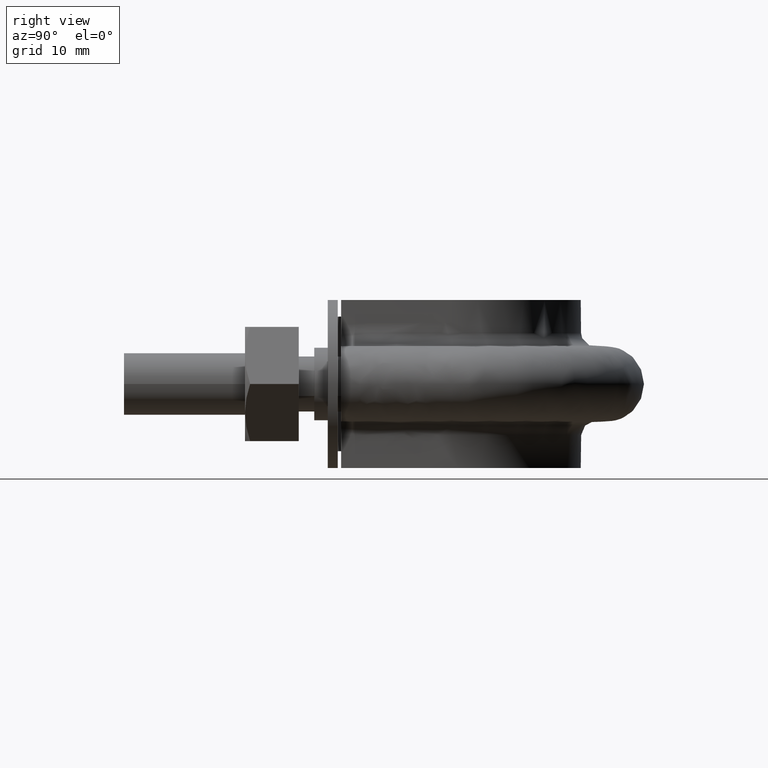
[diagram: clean part render]
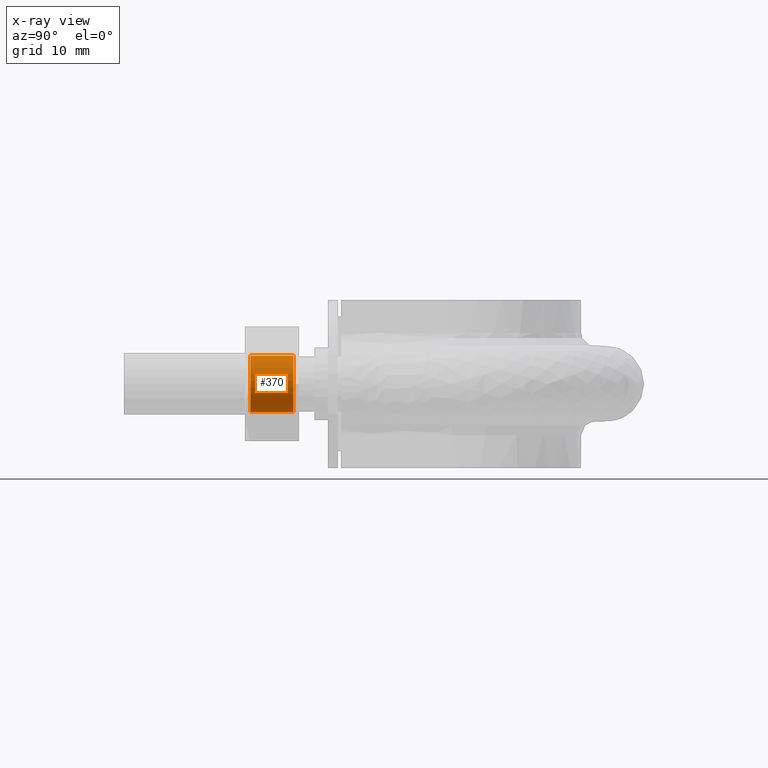
[diagram: x-ray — body ghosted, one internal face saturated and labeled with its STEP entity id]
A machine part, right view, then the same camera in x-ray: the body is ghosted and one INTERNAL B-rep face — a face not visible from any outside direction — is saturated and labeled: STEP entity #370.
In plain terms, the highlighted cylindrical surface (bore or boss wall) has radius 4.188 mm, axis along (0, 1, 0).
Its self-contained STEP definition (entity closure, byte-faithful):
#370 = ADVANCED_FACE( '', ( #615, #616 ), #617, .F. );
#615 = FACE_OUTER_BOUND( '', #1693, .T. );
#616 = FACE_OUTER_BOUND( '', #1694, .T. );
#617 = CYLINDRICAL_SURFACE( '', #1695, 4.18800000000000 );
#1693 = EDGE_LOOP( '', ( #2459 ) );
#1694 = EDGE_LOOP( '', ( #2460 ) );
#1695 = AXIS2_PLACEMENT_3D( '', #2461, #2462, #2463 );
#2459 = ORIENTED_EDGE( '', *, *, #2743, .F. );
#2460 = ORIENTED_EDGE( '', *, *, #2717, .T. );
#2461 = CARTESIAN_POINT( '', ( 23.0000000000000, 26.0000000000000, 7.29613851974116E-015 ) );
#2462 = DIRECTION( '', ( 2.44921270764475E-016, 1.00000000000000, 3.06151588455595E-016 ) );
#2463 = DIRECTION( '', ( -8.35309044156739E-011, 3.06151588476053E-016, -1.00000000000000 ) );
#2717 = EDGE_CURVE( '', #3086, #3086, #3087, .T. );
#2743 = EDGE_CURVE( '', #3128, #3128, #3129, .F. );
#3086 = VERTEX_POINT( '', #3843 );
#3087 = CIRCLE( '', #3844, 4.18800000000000 );
#3128 = VERTEX_POINT( '', #3918 );
#3129 = CIRCLE( '', #3919, 4.18800000000000 );
#3843 = CARTESIAN_POINT( '', ( 23.0000000000000, 25.1880000000000, 4.18800000000001 ) );
#3844 = AXIS2_PLACEMENT_3D( '', #4226, #4227, #4228 );
#3918 = CARTESIAN_POINT( '', ( 23.0000000000000, 18.8120000000003, -4.18799999999999 ) );
#3919 = AXIS2_PLACEMENT_3D( '', #4273, #4274, #4275 );
#4226 = CARTESIAN_POINT( '', ( 23.0000000000000, 25.1880000000000, 7.04754342991522E-015 ) );
#4227 = DIRECTION( '', ( 2.44921270764475E-016, 1.00000000000000, 3.06151588455595E-016 ) );
#4228 = DIRECTION( '', ( 0.000000000000000, -3.06151588455594E-016, 1.00000000000000 ) );
#4273 = CARTESIAN_POINT( '', ( 23.0000000000000, 18.8120000000003, 5.09552090192243E-015 ) );
#4274 = DIRECTION( '', ( -2.44921270764475E-016, -1.00000000000000, -3.06151588455595E-016 ) );
#4275 = DIRECTION( '', ( 0.000000000000000, 3.06151588455595E-016, -1.00000000000000 ) );